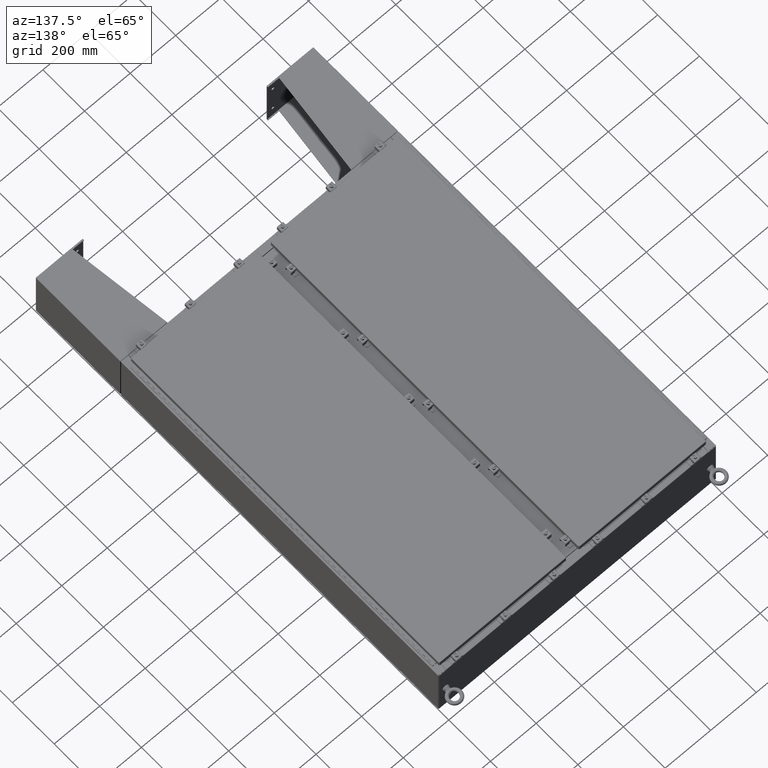
[diagram: clean part render]
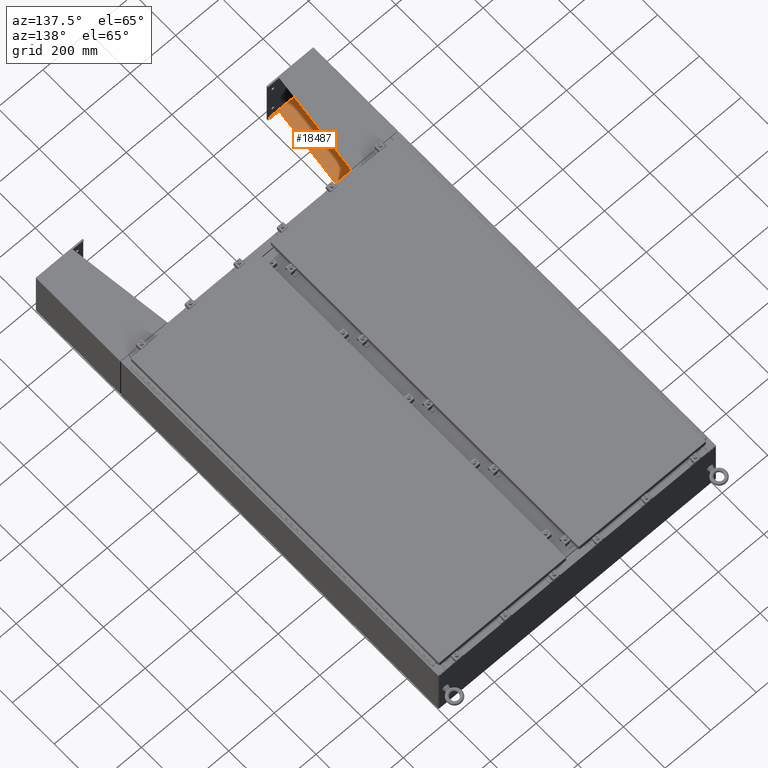
[diagram: same view with one face highlighted and labeled with its STEP entity id]
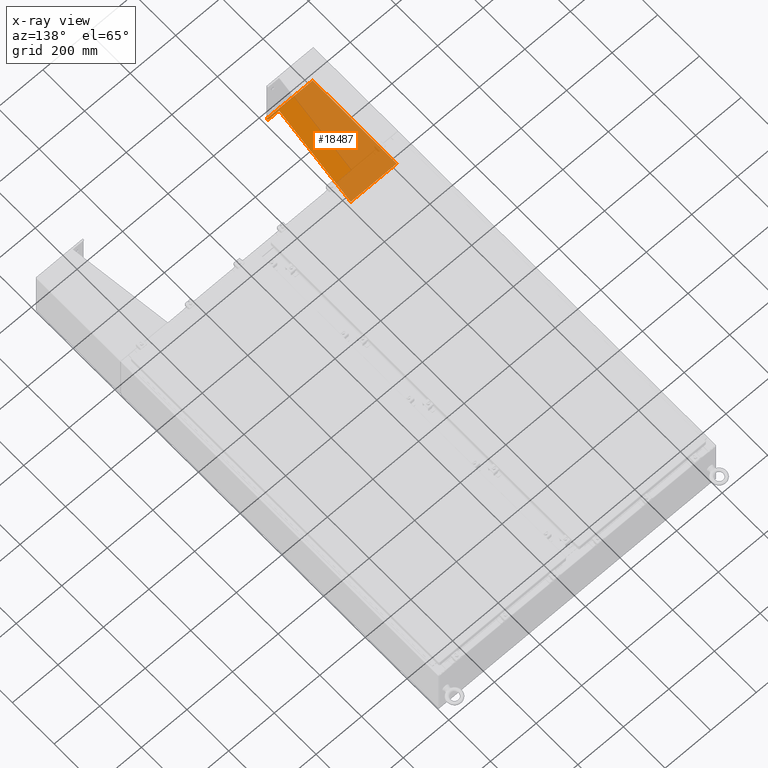
[diagram: x-ray of the same camera — body ghosted, the highlighted face saturated]
A machine part, auxiliary view. The second image highlights one B-rep face of the part: STEP entity #18487.
The next image is the same camera in x-ray: the body ghosted, the highlighted face saturated — about 69% of this face is hidden behind the body in this view.
In plain terms, the highlighted planar face has unit normal (-0, -0, 1).
Its self-contained STEP definition (entity closure, byte-faithful):
#527 = LINE ( 'NONE', #45855, #3821 ) ;
#2530 = ORIENTED_EDGE ( 'NONE', *, *, #21786, .F. ) ;
#3176 = VERTEX_POINT ( 'NONE', #40609 ) ;
#3681 = VERTEX_POINT ( 'NONE', #13565 ) ;
#3821 = VECTOR ( 'NONE', #18639, 39.37007874015748100 ) ;
#3851 = CARTESIAN_POINT ( 'NONE',  ( 4.896000000000027400, -7.749999999999999100, 8.001000000000006600 ) ) ;
#4383 = VECTOR ( 'NONE', #53789, 39.37007874015748100 ) ;
#7447 = EDGE_LOOP ( 'NONE', ( #36100, #24840, #38205, #58715, #45829, #2530 ) ) ;
#7583 = CARTESIAN_POINT ( 'NONE',  ( 4.895999999999999000, 7.856999999999998400, 0.03900000000002436200 ) ) ;
#8378 = EDGE_CURVE ( 'NONE', #44758, #25088, #527, .T. ) ;
#9396 = DIRECTION ( 'NONE',  ( -3.550958521948204300E-015, -1.724806627505603900E-032, -1.000000000000000000 ) ) ;
#10363 = VERTEX_POINT ( 'NONE', #54320 ) ;
#13565 = CARTESIAN_POINT ( 'NONE',  ( 4.896000000000027400, 7.856999999999933600, 8.000999999999987000 ) ) ;
#13748 = LINE ( 'NONE', #35464, #40160 ) ;
#13890 = DIRECTION ( 'NONE',  ( 7.004738445292831300E-015, -3.936854995453401900E-032, 1.000000000000000000 ) ) ;
#17746 = LINE ( 'NONE', #54978, #54833 ) ;
#18311 = EDGE_CURVE ( 'NONE', #10363, #3176, #17746, .T. ) ;
#18336 = LINE ( 'NONE', #27561, #4383 ) ;
#18487 = ADVANCED_FACE ( 'NONE', ( #44965 ), #46015, .T. ) ;
#18639 = DIRECTION ( 'NONE',  ( 0.0000000000000000000, 1.000000000000000000, 1.198498701752371100E-031 ) ) ;
#21786 = EDGE_CURVE ( 'NONE', #3176, #44758, #18336, .T. ) ;
#24840 = ORIENTED_EDGE ( 'NONE', *, *, #42358, .T. ) ;
#25024 = DIRECTION ( 'NONE',  ( 3.550958521948204300E-015, 1.724806627505603900E-032, 1.000000000000000000 ) ) ;
#25088 = VERTEX_POINT ( 'NONE', #7583 ) ;
#26478 = AXIS2_PLACEMENT_3D ( 'NONE', #51269, #56589, #25024 ) ;
#26547 = LINE ( 'NONE', #3851, #38964 ) ;
#27561 = CARTESIAN_POINT ( 'NONE',  ( 4.895999999999999000, -8.000000000000133200, -8.741913579725642300E-015 ) ) ;
#32583 = LINE ( 'NONE', #56013, #58937 ) ;
#35464 = CARTESIAN_POINT ( 'NONE',  ( 4.896000000000012300, -7.749999999999999100, 6.052216497445930300 ) ) ;
#36100 = ORIENTED_EDGE ( 'NONE', *, *, #18311, .F. ) ;
#38205 = ORIENTED_EDGE ( 'NONE', *, *, #60988, .T. ) ;
#38964 = VECTOR ( 'NONE', #9396, 39.37007874015748100 ) ;
#39384 = DIRECTION ( 'NONE',  ( -0.0000000000000000000, -1.000000000000000000, -1.198498701752371100E-031 ) ) ;
#39563 = CARTESIAN_POINT ( 'NONE',  ( 4.895999999999999900, -8.000000000000133200, 0.03899999999998939700 ) ) ;
#40160 = VECTOR ( 'NONE', #56648, 39.37007874015748100 ) ;
#40609 = CARTESIAN_POINT ( 'NONE',  ( 4.896000000000026600, -8.000000000000001800, 8.000999999999987000 ) ) ;
#41927 = CARTESIAN_POINT ( 'NONE',  ( 4.896000000000013200, -7.749999999999999100, 6.052216497445926700 ) ) ;
#42358 = EDGE_CURVE ( 'NONE', #10363, #58509, #26547, .T. ) ;
#44758 = VERTEX_POINT ( 'NONE', #39563 ) ;
#44965 = FACE_OUTER_BOUND ( 'NONE', #7447, .T. ) ;
#45829 = ORIENTED_EDGE ( 'NONE', *, *, #8378, .F. ) ;
#45855 = CARTESIAN_POINT ( 'NONE',  ( 4.895999999999999900, -8.000000000000133200, 0.03899999999998939700 ) ) ;
#46015 = PLANE ( 'NONE',  #26478 ) ;
#51269 = CARTESIAN_POINT ( 'NONE',  ( 4.896000000000026600, -8.000000000000001800, 8.000999999999987000 ) ) ;
#53789 = DIRECTION ( 'NONE',  ( -3.550958521948204300E-015, -1.724806627505603900E-032, -1.000000000000000000 ) ) ;
#54320 = CARTESIAN_POINT ( 'NONE',  ( 4.896000000000027400, -7.749999999999999100, 8.001000000000006600 ) ) ;
#54833 = VECTOR ( 'NONE', #39384, 39.37007874015748100 ) ;
#54978 = CARTESIAN_POINT ( 'NONE',  ( 4.896000000000026600, -8.000000000000001800, 8.000999999999987000 ) ) ;
#56013 = CARTESIAN_POINT ( 'NONE',  ( 4.895999999999984800, 7.856999999999998400, 0.03900000000002436200 ) ) ;
#56589 = DIRECTION ( 'NONE',  ( -1.000000000000000000, -6.212279628615467300E-030, 3.550958521948204300E-015 ) ) ;
#56648 = DIRECTION ( 'NONE',  ( 4.399772607369677600E-016, 0.9922942345449394800, 0.1239038017531047700 ) ) ;
#58509 = VERTEX_POINT ( 'NONE', #41927 ) ;
#58715 = ORIENTED_EDGE ( 'NONE', *, *, #62094, .F. ) ;
#58937 = VECTOR ( 'NONE', #13890, 39.37007874015748100 ) ;
#60988 = EDGE_CURVE ( 'NONE', #58509, #3681, #13748, .T. ) ;
#62094 = EDGE_CURVE ( 'NONE', #25088, #3681, #32583, .T. ) ;